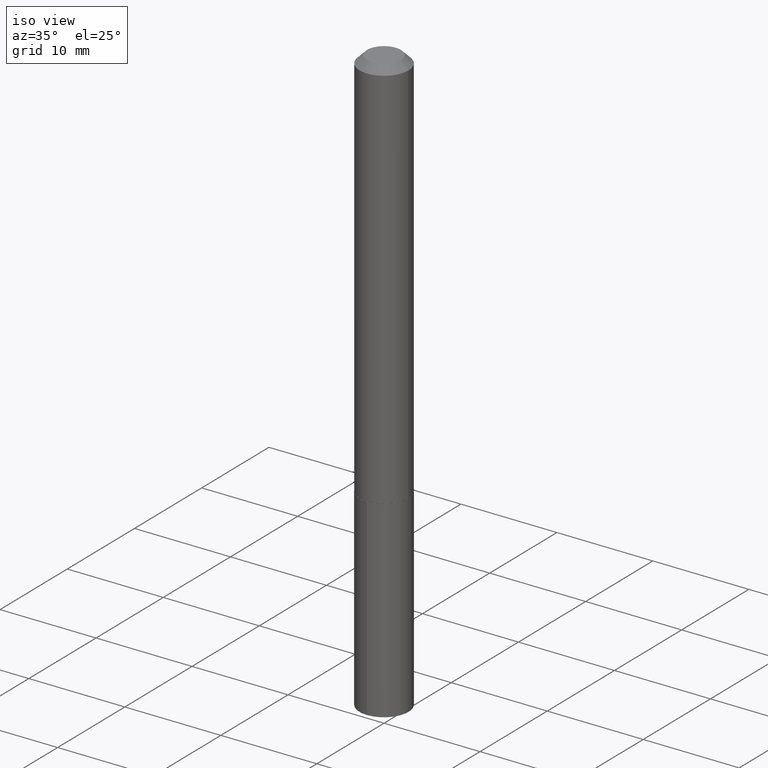
[diagram: clean part render]
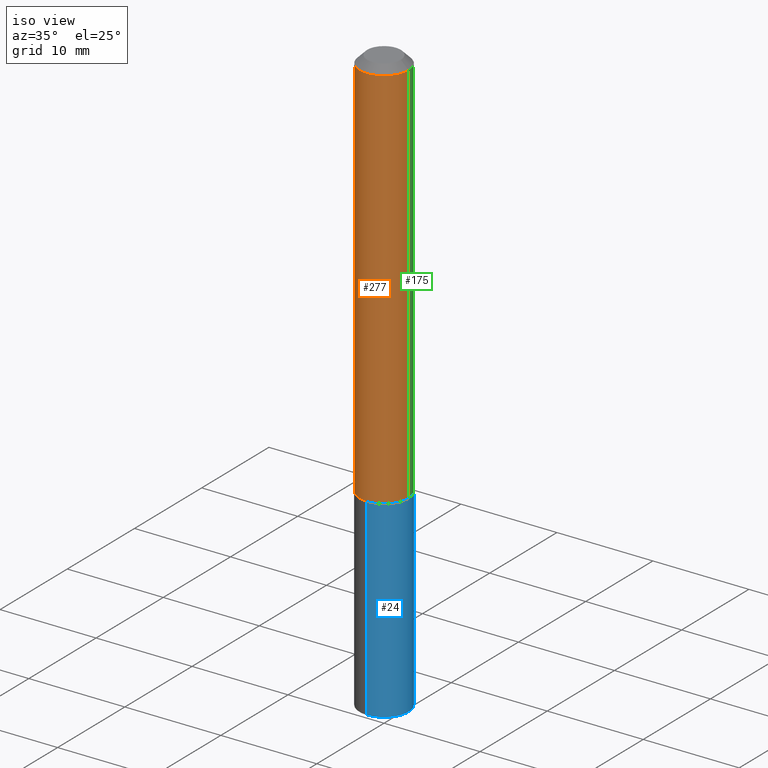
[diagram: same view with three faces highlighted in distinct colors, each labeled with its STEP entity id]
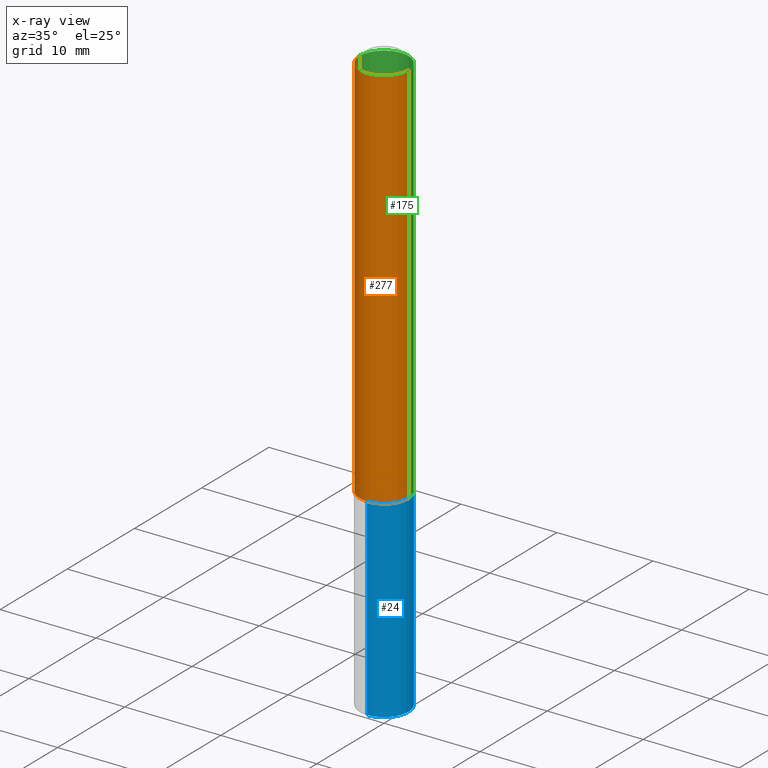
[diagram: x-ray of the same camera — body ghosted, the three highlighted faces saturated]
A machine part, iso view with three faces highlighted in distinct colors.
The next image is the same camera in x-ray (body ghosted, the three faces saturated) — at least one of them is partly hidden behind the body in this view.
Their STEP definitions:

[orange] entity #277 — the highlighted cylindrical surface (edge-blend (fillet) strip) has radius 2.5502 mm, axis along (-0, 0, 1).
#6 = VERTEX_POINT ( 'NONE', #379 ) ;
#9 = ORIENTED_EDGE ( 'NONE', *, *, #31, .T. ) ;
#14 = LINE ( 'NONE', #323, #340 ) ;
#27 = EDGE_CURVE ( 'NONE', #244, #6, #191, .T. ) ;
#31 = EDGE_CURVE ( 'NONE', #287, #37, #14, .T. ) ;
#37 = VERTEX_POINT ( 'NONE', #110 ) ;
#59 = CYLINDRICAL_SURFACE ( 'NONE', #190, 0.1004000000000001142 ) ;
#64 = ORIENTED_EDGE ( 'NONE', *, *, #136, .T. ) ;
#67 = DIRECTION ( 'NONE',  ( 1.000000000000000000, -6.982962677686266711E-15, 0.000000000000000000 ) ) ;
#84 = AXIS2_PLACEMENT_3D ( 'NONE', #101, #228, #67 ) ;
#89 = CIRCLE ( 'NONE', #113, 0.1004000000000002113 ) ;
#91 = CARTESIAN_POINT ( 'NONE',  ( -0.1004000000000002113, -4.934435307009531477E-15, -1.617600000000000149 ) ) ;
#98 = CARTESIAN_POINT ( 'NONE',  ( 0.1004000000000002113, -6.348909666552376614E-15, -1.617600000000000149 ) ) ;
#100 = ORIENTED_EDGE ( 'NONE', *, *, #27, .F. ) ;
#101 = CARTESIAN_POINT ( 'NONE',  ( 7.642090019328602662E-31, -1.091087918388490267E-16, -0.03125000000000020817 ) ) ;
#110 = CARTESIAN_POINT ( 'NONE',  ( 0.1004000000000000170, -8.101982446785503746E-16, -0.03125000000000020817 ) ) ;
#113 = AXIS2_PLACEMENT_3D ( 'NONE', #142, #365, #207 ) ;
#136 = EDGE_CURVE ( 'NONE', #244, #287, #89, .T. ) ;
#137 = DIRECTION ( 'NONE',  ( -2.445468806185136877E-29, 3.491481338843145188E-15, 1.000000000000000000 ) ) ;
#142 = CARTESIAN_POINT ( 'NONE',  ( 3.955790340885077095E-29, -5.647820213712673171E-15, -1.617600000000000149 ) ) ;
#144 = DIRECTION ( 'NONE',  ( -2.445468806185136597E-29, 3.491481338843145583E-15, 1.000000000000000000 ) ) ;
#157 = ORIENTED_EDGE ( 'NONE', *, *, #324, .F. ) ;
#190 = AXIS2_PLACEMENT_3D ( 'NONE', #360, #144, #273 ) ;
#191 = LINE ( 'NONE', #232, #325 ) ;
#207 = DIRECTION ( 'NONE',  ( 1.000000000000000000, -6.982962677686267499E-15, 0.000000000000000000 ) ) ;
#223 = EDGE_LOOP ( 'NONE', ( #100, #64, #9, #157 ) ) ;
#228 = DIRECTION ( 'NONE',  ( -2.445468806185136597E-29, 3.491481338843145583E-15, 1.000000000000000000 ) ) ;
#232 = CARTESIAN_POINT ( 'NONE',  ( -0.1004000000000001142, 7.133849067031413977E-16, -4.938610830615930599E-30 ) ) ;
#244 = VERTEX_POINT ( 'NONE', #91 ) ;
#269 = CIRCLE ( 'NONE', #84, 0.1004000000000000170 ) ;
#273 = DIRECTION ( 'NONE',  ( 1.000000000000000000, -6.982962677686266711E-15, 4.876176775795935232E-29 ) ) ;
#277 = ADVANCED_FACE ( 'NONE', ( #311 ), #59, .T. ) ;
#287 = VERTEX_POINT ( 'NONE', #98 ) ;
#291 = DIRECTION ( 'NONE',  ( -2.445468806185136877E-29, 3.491481338843145188E-15, 1.000000000000000000 ) ) ;
#311 = FACE_OUTER_BOUND ( 'NONE', #223, .T. ) ;
#323 = CARTESIAN_POINT ( 'NONE',  ( 0.1004000000000001142, -7.010894528397019642E-16, 4.895681482899124760E-30 ) ) ;
#324 = EDGE_CURVE ( 'NONE', #6, #37, #269, .T. ) ;
#325 = VECTOR ( 'NONE', #291, 39.37007874015748143 ) ;
#340 = VECTOR ( 'NONE', #137, 39.37007874015748143 ) ;
#360 = CARTESIAN_POINT ( 'NONE',  ( 0.000000000000000000, 0.000000000000000000, 0.000000000000000000 ) ) ;
#365 = DIRECTION ( 'NONE',  ( -2.445468806185136597E-29, 3.491481338843145583E-15, 1.000000000000000000 ) ) ;
#379 = CARTESIAN_POINT ( 'NONE',  ( -0.1004000000000000170, -2.165079596072618653E-15, -0.03125000000000020817 ) ) ;

[blue] entity #24 — the highlighted cylindrical surface (edge-blend (fillet) strip) has radius 2.5502 mm, axis along (-0, 0, 1).
#4 = DIRECTION ( 'NONE',  ( -6.982962677686266711E-15, -1.000000000000000000, 2.720964137115799877E-15 ) ) ;
#24 = ADVANCED_FACE ( 'NONE', ( #197 ), #164, .T. ) ;
#28 = CARTESIAN_POINT ( 'NONE',  ( 7.133849067031995762E-16, 0.1003999999999943549, -1.618100000000000316 ) ) ;
#38 = EDGE_CURVE ( 'NONE', #370, #75, #79, .T. ) ;
#41 = VECTOR ( 'NONE', #216, 39.37007874015748143 ) ;
#43 = DIRECTION ( 'NONE',  ( -6.982962677686266711E-15, -1.000000000000000000, 2.720964137115799877E-15 ) ) ;
#75 = VERTEX_POINT ( 'NONE', #234 ) ;
#77 = AXIS2_PLACEMENT_3D ( 'NONE', #149, #90, #4 ) ;
#79 = LINE ( 'NONE', #298, #168 ) ;
#90 = DIRECTION ( 'NONE',  ( -2.449967317567502477E-29, 3.485039214504230177E-15, 1.000000000000000000 ) ) ;
#109 = ORIENTED_EDGE ( 'NONE', *, *, #166, .T. ) ;
#139 = AXIS2_PLACEMENT_3D ( 'NONE', #188, #162, #43 ) ;
#149 = CARTESIAN_POINT ( 'NONE',  ( 5.895290022689288999E-29, -8.406733824265868032E-15, -2.409244001596550167 ) ) ;
#153 = ORIENTED_EDGE ( 'NONE', *, *, #249, .F. ) ;
#155 = CIRCLE ( 'NONE', #342, 0.1004000000000000031 ) ;
#162 = DIRECTION ( 'NONE',  ( -2.449967317567502477E-29, 3.485039214504230177E-15, 1.000000000000000000 ) ) ;
#164 = CYLINDRICAL_SURFACE ( 'NONE', #139, 0.1004000000000000031 ) ;
#165 = DIRECTION ( 'NONE',  ( -2.449967317567502196E-29, 3.485039214504230177E-15, 1.000000000000000000 ) ) ;
#166 = EDGE_CURVE ( 'NONE', #369, #257, #203, .T. ) ;
#168 = VECTOR ( 'NONE', #165, 39.37007874015748143 ) ;
#187 = CARTESIAN_POINT ( 'NONE',  ( 7.133849067031995762E-16, 0.1003999999999916071, -2.409244001596550167 ) ) ;
#188 = CARTESIAN_POINT ( 'NONE',  ( 3.957013075288169897E-29, -5.649565954382093886E-15, -1.618100000000000094 ) ) ;
#197 = FACE_OUTER_BOUND ( 'NONE', #285, .T. ) ;
#203 = LINE ( 'NONE', #306, #41 ) ;
#216 = DIRECTION ( 'NONE',  ( -2.449967317567502196E-29, 3.485039214504230177E-15, 1.000000000000000000 ) ) ;
#217 = ORIENTED_EDGE ( 'NONE', *, *, #38, .F. ) ;
#218 = EDGE_CURVE ( 'NONE', #370, #369, #366, .T. ) ;
#221 = CARTESIAN_POINT ( 'NONE',  ( -7.010894528396421094E-16, -0.1004000000000084131, -2.409244001596549722 ) ) ;
#234 = CARTESIAN_POINT ( 'NONE',  ( -7.010894528396616337E-16, -0.1004000000000056514, -1.618099999999999872 ) ) ;
#247 = DIRECTION ( 'NONE',  ( -2.449967317567502477E-29, 3.485039214504230177E-15, 1.000000000000000000 ) ) ;
#249 = EDGE_CURVE ( 'NONE', #75, #257, #155, .T. ) ;
#254 = ORIENTED_EDGE ( 'NONE', *, *, #218, .T. ) ;
#257 = VERTEX_POINT ( 'NONE', #28 ) ;
#285 = EDGE_LOOP ( 'NONE', ( #254, #109, #153, #217 ) ) ;
#298 = CARTESIAN_POINT ( 'NONE',  ( -7.010894528396616337E-16, -0.1004000000000056514, -1.618099999999999872 ) ) ;
#305 = CARTESIAN_POINT ( 'NONE',  ( 3.957013075288169897E-29, -5.649565954382093886E-15, -1.618100000000000094 ) ) ;
#306 = CARTESIAN_POINT ( 'NONE',  ( 7.133849067031800519E-16, 0.1003999999999943549, -1.618100000000000316 ) ) ;
#308 = DIRECTION ( 'NONE',  ( -6.982962677686266711E-15, -1.000000000000000000, 2.720964137115799877E-15 ) ) ;
#342 = AXIS2_PLACEMENT_3D ( 'NONE', #305, #247, #308 ) ;
#366 = CIRCLE ( 'NONE', #77, 0.1004000000000000031 ) ;
#369 = VERTEX_POINT ( 'NONE', #187 ) ;
#370 = VERTEX_POINT ( 'NONE', #221 ) ;

[green] entity #175 — the highlighted cylindrical surface (edge-blend (fillet) strip) has radius 2.5502 mm, axis along (-0, 0, 1).
#6 = VERTEX_POINT ( 'NONE', #379 ) ;
#14 = LINE ( 'NONE', #323, #340 ) ;
#27 = EDGE_CURVE ( 'NONE', #244, #6, #191, .T. ) ;
#29 = CYLINDRICAL_SURFACE ( 'NONE', #44, 0.1004000000000001142 ) ;
#31 = EDGE_CURVE ( 'NONE', #287, #37, #14, .T. ) ;
#37 = VERTEX_POINT ( 'NONE', #110 ) ;
#40 = ORIENTED_EDGE ( 'NONE', *, *, #27, .T. ) ;
#44 = AXIS2_PLACEMENT_3D ( 'NONE', #206, #241, #242 ) ;
#91 = CARTESIAN_POINT ( 'NONE',  ( -0.1004000000000002113, -4.934435307009531477E-15, -1.617600000000000149 ) ) ;
#98 = CARTESIAN_POINT ( 'NONE',  ( 0.1004000000000002113, -6.348909666552376614E-15, -1.617600000000000149 ) ) ;
#110 = CARTESIAN_POINT ( 'NONE',  ( 0.1004000000000000170, -8.101982446785503746E-16, -0.03125000000000020817 ) ) ;
#123 = ORIENTED_EDGE ( 'NONE', *, *, #331, .F. ) ;
#137 = DIRECTION ( 'NONE',  ( -2.445468806185136877E-29, 3.491481338843145188E-15, 1.000000000000000000 ) ) ;
#163 = DIRECTION ( 'NONE',  ( 1.000000000000000000, -6.982962677686266711E-15, 0.000000000000000000 ) ) ;
#173 = CIRCLE ( 'NONE', #383, 0.1004000000000002113 ) ;
#175 = ADVANCED_FACE ( 'NONE', ( #279 ), #29, .T. ) ;
#182 = AXIS2_PLACEMENT_3D ( 'NONE', #185, #183, #163 ) ;
#183 = DIRECTION ( 'NONE',  ( -2.445468806185136597E-29, 3.491481338843145583E-15, 1.000000000000000000 ) ) ;
#185 = CARTESIAN_POINT ( 'NONE',  ( 7.642090019328602662E-31, -1.091087918388490267E-16, -0.03125000000000020817 ) ) ;
#191 = LINE ( 'NONE', #232, #325 ) ;
#192 = CARTESIAN_POINT ( 'NONE',  ( 3.955790340885077095E-29, -5.647820213712673171E-15, -1.617600000000000149 ) ) ;
#196 = CIRCLE ( 'NONE', #182, 0.1004000000000000170 ) ;
#206 = CARTESIAN_POINT ( 'NONE',  ( 0.000000000000000000, 0.000000000000000000, 0.000000000000000000 ) ) ;
#232 = CARTESIAN_POINT ( 'NONE',  ( -0.1004000000000001142, 7.133849067031413977E-16, -4.938610830615930599E-30 ) ) ;
#241 = DIRECTION ( 'NONE',  ( -2.445468806185136597E-29, 3.491481338843145583E-15, 1.000000000000000000 ) ) ;
#242 = DIRECTION ( 'NONE',  ( 1.000000000000000000, -6.982962677686266711E-15, 4.876176775795935232E-29 ) ) ;
#244 = VERTEX_POINT ( 'NONE', #91 ) ;
#252 = DIRECTION ( 'NONE',  ( 1.000000000000000000, -6.982962677686267499E-15, 0.000000000000000000 ) ) ;
#279 = FACE_OUTER_BOUND ( 'NONE', #343, .T. ) ;
#287 = VERTEX_POINT ( 'NONE', #98 ) ;
#291 = DIRECTION ( 'NONE',  ( -2.445468806185136877E-29, 3.491481338843145188E-15, 1.000000000000000000 ) ) ;
#292 = DIRECTION ( 'NONE',  ( -2.445468806185136597E-29, 3.491481338843145583E-15, 1.000000000000000000 ) ) ;
#318 = ORIENTED_EDGE ( 'NONE', *, *, #352, .T. ) ;
#323 = CARTESIAN_POINT ( 'NONE',  ( 0.1004000000000001142, -7.010894528397019642E-16, 4.895681482899124760E-30 ) ) ;
#325 = VECTOR ( 'NONE', #291, 39.37007874015748143 ) ;
#331 = EDGE_CURVE ( 'NONE', #37, #6, #196, .T. ) ;
#337 = ORIENTED_EDGE ( 'NONE', *, *, #31, .F. ) ;
#340 = VECTOR ( 'NONE', #137, 39.37007874015748143 ) ;
#343 = EDGE_LOOP ( 'NONE', ( #318, #40, #123, #337 ) ) ;
#352 = EDGE_CURVE ( 'NONE', #287, #244, #173, .T. ) ;
#379 = CARTESIAN_POINT ( 'NONE',  ( -0.1004000000000000170, -2.165079596072618653E-15, -0.03125000000000020817 ) ) ;
#383 = AXIS2_PLACEMENT_3D ( 'NONE', #192, #292, #252 ) ;